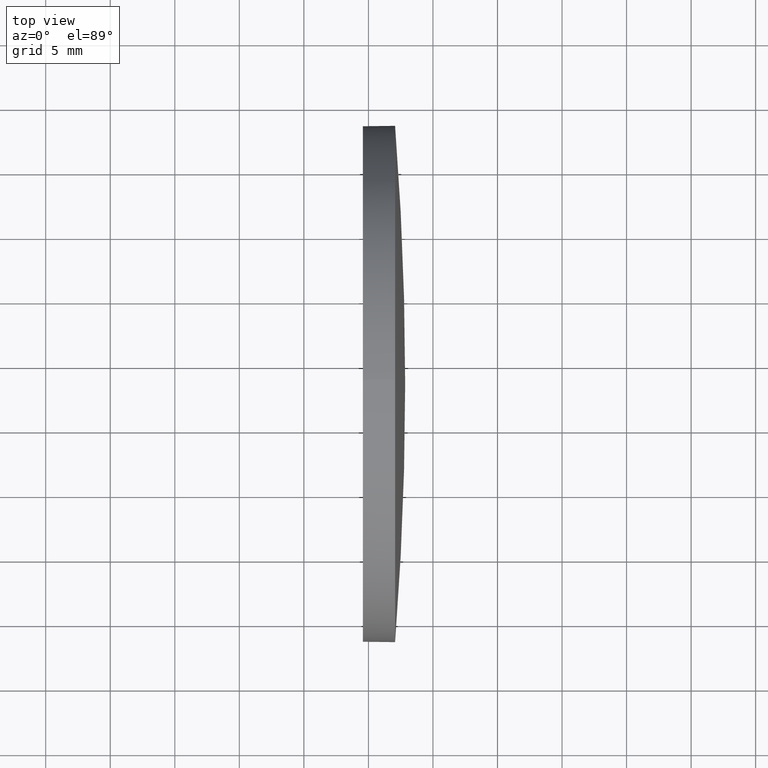
[diagram: clean part render]
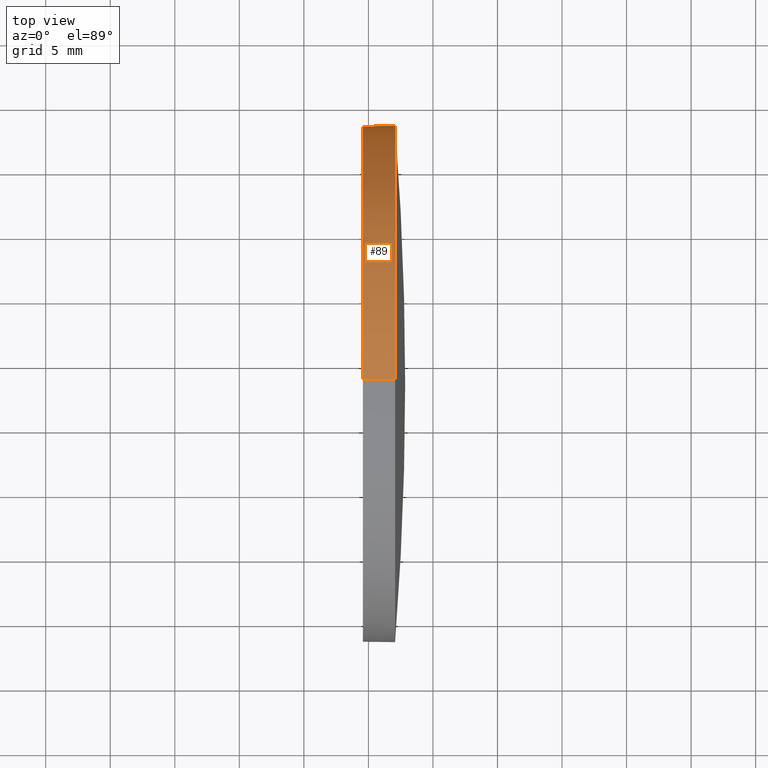
[diagram: same view with one face highlighted and labeled with its STEP entity id]
A machine part, top view. The second image highlights one B-rep face of the part: STEP entity #89.
In plain terms, the highlighted cylindrical surface (partial cylindrical patch) has radius 20 mm, axis along (-1, -0, -0).
Its self-contained STEP definition (entity closure, byte-faithful):
#6 = EDGE_LOOP ( 'NONE', ( #146, #47, #102, #87, #33 ) ) ;
#9 = EDGE_CURVE ( 'NONE', #184, #113, #120, .T. ) ;
#12 = FACE_OUTER_BOUND ( 'NONE', #6, .T. ) ;
#13 = EDGE_CURVE ( 'NONE', #137, #184, #145, .T. ) ;
#18 = CARTESIAN_POINT ( 'NONE',  ( 432.0673721980472200, 108.4341461141712000, -20.00000000000000400 ) ) ;
#27 = VERTEX_POINT ( 'NONE', #18 ) ;
#28 = EDGE_CURVE ( 'NONE', #137, #31, #148, .T. ) ;
#31 = VERTEX_POINT ( 'NONE', #64 ) ;
#33 = ORIENTED_EDGE ( 'NONE', *, *, #28, .T. ) ;
#36 = DIRECTION ( 'NONE',  ( 0.0000000000000000000, 0.0000000000000000000, 1.000000000000000000 ) ) ;
#38 = CARTESIAN_POINT ( 'NONE',  ( 429.5673721980472200, 108.4341461141712000, -20.00000000000000400 ) ) ;
#40 = AXIS2_PLACEMENT_3D ( 'NONE', #81, #164, #36 ) ;
#42 = CARTESIAN_POINT ( 'NONE',  ( 429.5673721980472200, 108.4341461141712000, 0.0000000000000000000 ) ) ;
#45 = LINE ( 'NONE', #138, #96 ) ;
#47 = ORIENTED_EDGE ( 'NONE', *, *, #53, .T. ) ;
#50 = CARTESIAN_POINT ( 'NONE',  ( 432.0673721980472200, 108.4341461141712000, 20.00000000000000400 ) ) ;
#53 = EDGE_CURVE ( 'NONE', #27, #113, #45, .T. ) ;
#55 = DIRECTION ( 'NONE',  ( 0.0000000000000000000, 0.0000000000000000000, 1.000000000000000000 ) ) ;
#63 = CARTESIAN_POINT ( 'NONE',  ( 432.0673721980472200, 108.4341461141712000, 0.0000000000000000000 ) ) ;
#64 = CARTESIAN_POINT ( 'NONE',  ( 432.0673721980472200, 128.4341461141713700, 2.449293598294722300E-015 ) ) ;
#67 = DIRECTION ( 'NONE',  ( 0.0000000000000000000, 0.0000000000000000000, 1.000000000000000000 ) ) ;
#70 = CARTESIAN_POINT ( 'NONE',  ( 425.6024185870612700, 108.4341461141712000, 20.00000000000000400 ) ) ;
#78 = DIRECTION ( 'NONE',  ( 0.0000000000000000000, 0.0000000000000000000, 1.000000000000000000 ) ) ;
#81 = CARTESIAN_POINT ( 'NONE',  ( 432.0673721980472200, 108.4341461141712000, 0.0000000000000000000 ) ) ;
#82 = AXIS2_PLACEMENT_3D ( 'NONE', #110, #139, #67 ) ;
#84 = EDGE_CURVE ( 'NONE', #31, #27, #134, .T. ) ;
#87 = ORIENTED_EDGE ( 'NONE', *, *, #13, .F. ) ;
#89 = ADVANCED_FACE ( 'NONE', ( #12 ), #126, .T. ) ;
#94 = DIRECTION ( 'NONE',  ( -1.000000000000000000, -0.0000000000000000000, -0.0000000000000000000 ) ) ;
#96 = VECTOR ( 'NONE', #123, 1000.000000000000000 ) ;
#102 = ORIENTED_EDGE ( 'NONE', *, *, #9, .F. ) ;
#103 = AXIS2_PLACEMENT_3D ( 'NONE', #42, #143, #55 ) ;
#108 = AXIS2_PLACEMENT_3D ( 'NONE', #63, #94, #78 ) ;
#110 = CARTESIAN_POINT ( 'NONE',  ( 425.6024185870612700, 108.4341461141712000, 0.0000000000000000000 ) ) ;
#113 = VERTEX_POINT ( 'NONE', #38 ) ;
#120 = CIRCLE ( 'NONE', #103, 20.00000000000000400 ) ;
#123 = DIRECTION ( 'NONE',  ( -1.000000000000000000, -0.0000000000000000000, -0.0000000000000000000 ) ) ;
#126 = CYLINDRICAL_SURFACE ( 'NONE', #82, 20.00000000000000400 ) ;
#127 = VECTOR ( 'NONE', #167, 1000.000000000000000 ) ;
#134 = CIRCLE ( 'NONE', #108, 20.00000000000000400 ) ;
#137 = VERTEX_POINT ( 'NONE', #50 ) ;
#138 = CARTESIAN_POINT ( 'NONE',  ( 425.6024185870612700, 108.4341461141712000, -20.00000000000000400 ) ) ;
#139 = DIRECTION ( 'NONE',  ( -1.000000000000000000, -0.0000000000000000000, -0.0000000000000000000 ) ) ;
#143 = DIRECTION ( 'NONE',  ( -1.000000000000000000, -0.0000000000000000000, -0.0000000000000000000 ) ) ;
#145 = LINE ( 'NONE', #70, #127 ) ;
#146 = ORIENTED_EDGE ( 'NONE', *, *, #84, .T. ) ;
#148 = CIRCLE ( 'NONE', #40, 20.00000000000000400 ) ;
#154 = CARTESIAN_POINT ( 'NONE',  ( 429.5673721980472200, 108.4341461141712000, 20.00000000000000400 ) ) ;
#164 = DIRECTION ( 'NONE',  ( -1.000000000000000000, -0.0000000000000000000, -0.0000000000000000000 ) ) ;
#167 = DIRECTION ( 'NONE',  ( -1.000000000000000000, -0.0000000000000000000, -0.0000000000000000000 ) ) ;
#184 = VERTEX_POINT ( 'NONE', #154 ) ;